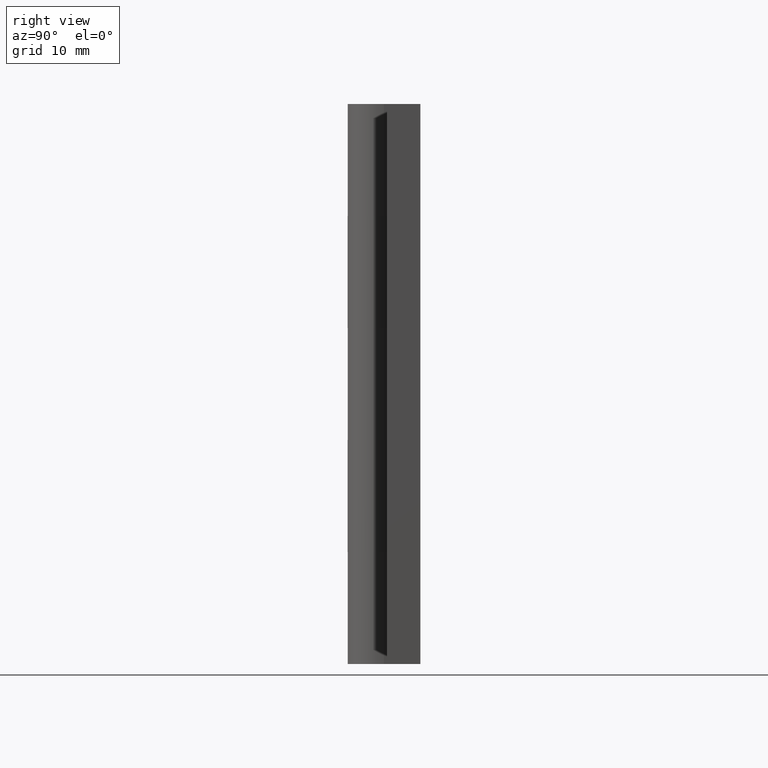
[diagram: clean part render]
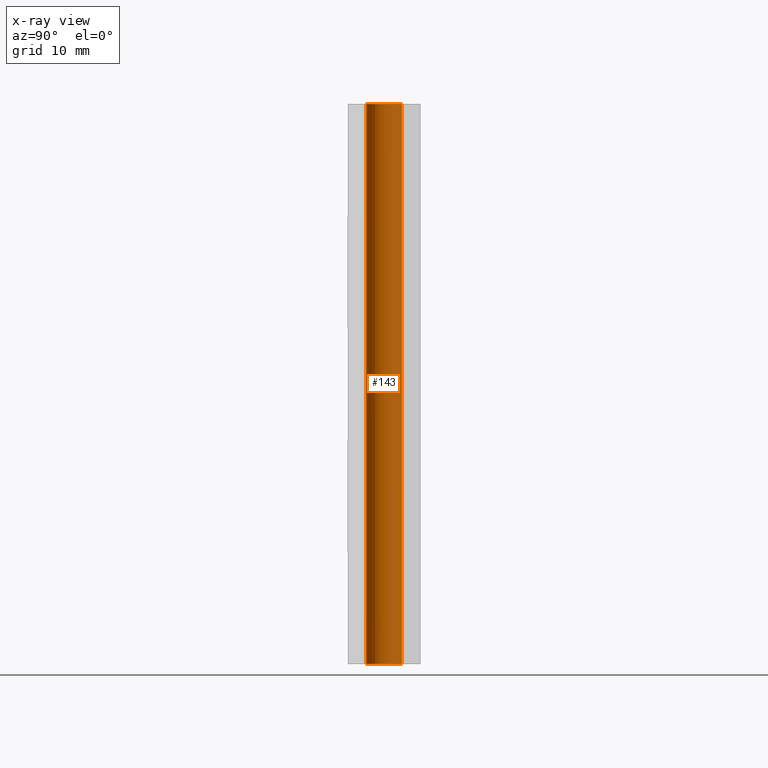
[diagram: x-ray — body ghosted, one internal face saturated and labeled with its STEP entity id]
A machine part, right view, then the same camera in x-ray: the body is ghosted and one INTERNAL B-rep face — a face not visible from any outside direction — is saturated and labeled: STEP entity #143.
In plain terms, the highlighted face is a freeform B-spline surface patch.
Its self-contained STEP definition (entity closure, byte-faithful):
#12=CARTESIAN_POINT('',(0.097677663336456,-1.597015677470052,1.110223E-016));
#13=VERTEX_POINT('',#12);
#27=CARTESIAN_POINT('',(-1.600000000000000,0.0,0.0));
#28=VERTEX_POINT('',#27);
#29=CARTESIAN_POINT('',(0.097677663336456,-1.597015677470052,0.0));
#30=CARTESIAN_POINT('',(0.048884421318198,-1.600000000000000,0.0));
#31=CARTESIAN_POINT('',(0.0,-1.600000000000000,0.0));
#32=CARTESIAN_POINT('',(-1.600000000000000,-1.600000000000000,0.0));
#33=CARTESIAN_POINT('',(-1.600000000000000,0.0,0.0));
#41=(BOUNDED_CURVE()B_SPLINE_CURVE(2,(#29,#30,#31,#32,#33),.UNSPECIFIED.,.F.,.U.)B_SPLINE_CURVE_WITH_KNOTS((3,2,3),(0.239332962233251,0.250000000000000,0.500000000000000),.UNSPECIFIED.)CURVE()GEOMETRIC_REPRESENTATION_ITEM()RATIONAL_B_SPLINE_CURVE((0.976072041654519,0.987502787893169,1.0,0.707106781186548,1.0))REPRESENTATION_ITEM(''));
#42=EDGE_CURVE('',#13,#28,#41,.T.);
#44=CARTESIAN_POINT('',(-0.097677663336456,1.597015677470052,1.110223E-016));
#45=VERTEX_POINT('',#44);
#46=CARTESIAN_POINT('',(-1.600000000000000,0.0,0.0));
#47=CARTESIAN_POINT('',(-1.600000000000000,1.505129706972926,0.0));
#48=CARTESIAN_POINT('',(-0.097677663336456,1.597015677470052,0.0));
#56=(BOUNDED_CURVE()B_SPLINE_CURVE(2,(#46,#47,#48),.UNSPECIFIED.,.F.,.U.)B_SPLINE_CURVE_WITH_KNOTS((3,3),(0.500000000000000,0.739332962233251),.UNSPECIFIED.)CURVE()GEOMETRIC_REPRESENTATION_ITEM()RATIONAL_B_SPLINE_CURVE((1.0,0.719603993293379,0.976072041654519))REPRESENTATION_ITEM(''));
#57=EDGE_CURVE('',#28,#45,#56,.T.);
#77=CARTESIAN_POINT('',(0.097677663255771,-1.597015677474987,51.250000000000007));
#78=CARTESIAN_POINT('',(-1.499338014219216,-1.694693340730757,51.250000000000007));
#79=CARTESIAN_POINT('',(-1.597015677474987,-0.097677663255771,51.250000000000007));
#80=CARTESIAN_POINT('',(-1.694693340730757,1.499338014219216,51.250000000000007));
#81=CARTESIAN_POINT('',(-0.097677663255771,1.597015677474987,51.250000000000007));
#82=CARTESIAN_POINT('',(0.097677663255771,-1.597015677474987,-1.281250000000007));
#83=CARTESIAN_POINT('',(-1.499338014219216,-1.694693340730757,-1.281250000000007));
#84=CARTESIAN_POINT('',(-1.597015677474987,-0.097677663255771,-1.281250000000007));
#85=CARTESIAN_POINT('',(-1.694693340730757,1.499338014219216,-1.281250000000007));
#86=CARTESIAN_POINT('',(-0.097677663255771,1.597015677474987,-1.281250000000007));
#94=(BOUNDED_SURFACE()B_SPLINE_SURFACE(2,1,((#77,#82),(#78,#83),(#79,#84),(#80,#85),(#81,#86)),.UNSPECIFIED.,.F.,.F.,.U.)B_SPLINE_SURFACE_WITH_KNOTS((3,2,3),(2,2),(3.141592653589793,4.712388980384690,6.283185307179586),(0.0,52.531250000000007),.UNSPECIFIED.)GEOMETRIC_REPRESENTATION_ITEM()RATIONAL_B_SPLINE_SURFACE(((1.0,1.0),(0.707106781186548,0.707106781186548),(1.0,1.0),(0.707106781186548,0.707106781186548),(1.0,1.0)))REPRESENTATION_ITEM('')SURFACE());
#95=ORIENTED_EDGE('',*,*,#42,.F.);
#96=CARTESIAN_POINT('',(0.097677663336456,-1.597015677470052,50.0));
#97=VERTEX_POINT('',#96);
#98=CARTESIAN_POINT('',(0.097677663336456,-1.597015677470052,50.0));
#99=CARTESIAN_POINT('',(0.097677663336456,-1.597015677470052,1.110223E-016));
#100=QUASI_UNIFORM_CURVE('',1,(#98,#99),.UNSPECIFIED.,.F.,.U.);
#101=EDGE_CURVE('',#97,#13,#100,.T.);
#102=ORIENTED_EDGE('',*,*,#101,.F.);
#103=CARTESIAN_POINT('',(-1.600000000000000,0.0,50.0));
#104=VERTEX_POINT('',#103);
#105=CARTESIAN_POINT('',(0.097677663336456,-1.597015677470052,50.0));
#106=CARTESIAN_POINT('',(0.048884421318198,-1.600000000000000,50.000000000000007));
#107=CARTESIAN_POINT('',(0.0,-1.600000000000000,50.0));
#108=CARTESIAN_POINT('',(-1.600000000000000,-1.600000000000000,50.0));
#109=CARTESIAN_POINT('',(-1.600000000000000,0.0,50.0));
#117=(BOUNDED_CURVE()B_SPLINE_CURVE(2,(#105,#106,#107,#108,#109),.UNSPECIFIED.,.F.,.U.)B_SPLINE_CURVE_WITH_KNOTS((3,2,3),(0.239332962233251,0.250000000000000,0.500000000000000),.UNSPECIFIED.)CURVE()GEOMETRIC_REPRESENTATION_ITEM()RATIONAL_B_SPLINE_CURVE((0.976072041654519,0.987502787893169,1.0,0.707106781186548,1.0))REPRESENTATION_ITEM(''));
#118=EDGE_CURVE('',#97,#104,#117,.T.);
#119=ORIENTED_EDGE('',*,*,#118,.T.);
#120=CARTESIAN_POINT('',(-0.097677663336456,1.597015677470052,50.0));
#121=VERTEX_POINT('',#120);
#122=CARTESIAN_POINT('',(-1.600000000000000,0.0,50.0));
#123=CARTESIAN_POINT('',(-1.600000000000000,1.505129706972926,50.000000000000014));
#124=CARTESIAN_POINT('',(-0.097677663336456,1.597015677470052,50.0));
#132=(BOUNDED_CURVE()B_SPLINE_CURVE(2,(#122,#123,#124),.UNSPECIFIED.,.F.,.U.)B_SPLINE_CURVE_WITH_KNOTS((3,3),(0.500000000000000,0.739332962233251),.UNSPECIFIED.)CURVE()GEOMETRIC_REPRESENTATION_ITEM()RATIONAL_B_SPLINE_CURVE((1.0,0.719603993293379,0.976072041654519))REPRESENTATION_ITEM(''));
#133=EDGE_CURVE('',#104,#121,#132,.T.);
#134=ORIENTED_EDGE('',*,*,#133,.T.);
#135=CARTESIAN_POINT('',(-0.097677663336456,1.597015677470052,50.0));
#136=CARTESIAN_POINT('',(-0.097677663336456,1.597015677470052,1.110223E-016));
#137=QUASI_UNIFORM_CURVE('',1,(#135,#136),.UNSPECIFIED.,.F.,.U.);
#138=EDGE_CURVE('',#121,#45,#137,.T.);
#139=ORIENTED_EDGE('',*,*,#138,.T.);
#140=ORIENTED_EDGE('',*,*,#57,.F.);
#141=EDGE_LOOP('',(#95,#102,#119,#134,#139,#140));
#142=FACE_OUTER_BOUND('',#141,.T.);
#143=ADVANCED_FACE('',(#142),#94,.T.);